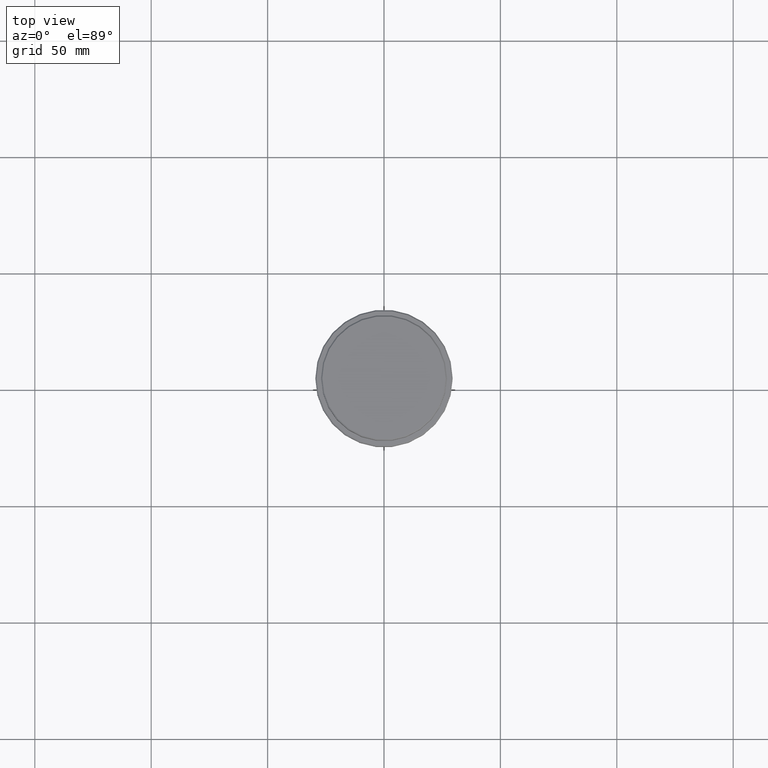
[diagram: clean part render]
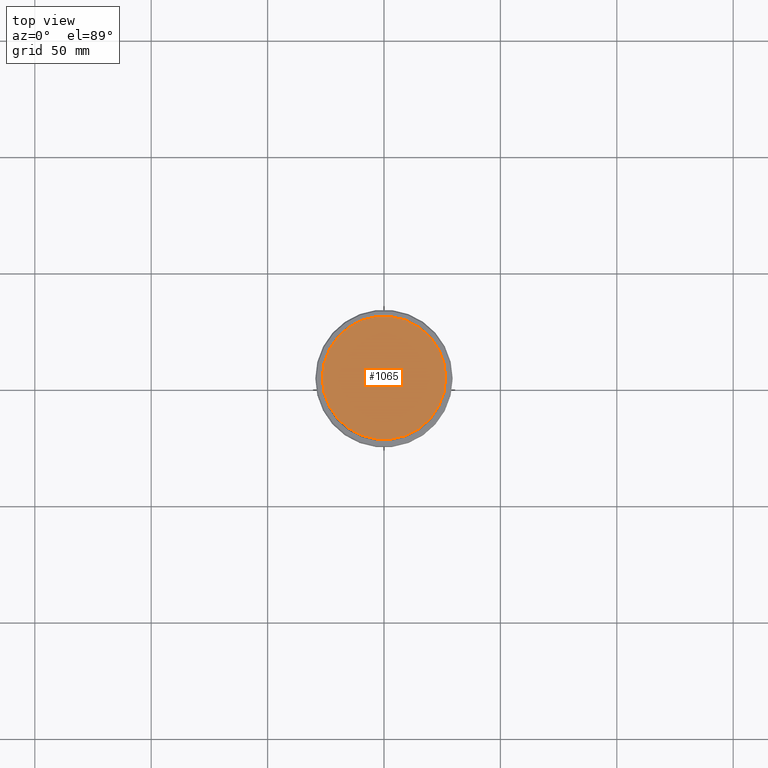
[diagram: same view with one face highlighted and labeled with its STEP entity id]
A machine part, top view. The second image highlights one B-rep face of the part: STEP entity #1065.
In plain terms, the highlighted planar face has unit normal (0, -0, 1).
Its self-contained STEP definition (entity closure, byte-faithful):
#87 = DIRECTION ( 'NONE',  ( -0.000000000000000000, -0.000000000000000000, 1.000000000000000000 ) ) ;
#111 = FACE_OUTER_BOUND ( 'NONE', #1018, .T. ) ;
#158 = VERTEX_POINT ( 'NONE', #516 ) ;
#222 = CARTESIAN_POINT ( 'NONE',  ( 0.000000000000000000, 0.000000000000000000, 0.000000000000000000 ) ) ;
#285 = AXIS2_PLACEMENT_3D ( 'NONE', #699, #1348, #369 ) ;
#369 = DIRECTION ( 'NONE',  ( 1.000000000000000000, 0.000000000000000000, 0.000000000000000000 ) ) ;
#456 = CIRCLE ( 'NONE', #645, 26.49999999999999645 ) ;
#516 = CARTESIAN_POINT ( 'NONE',  ( 26.49999999999999645, 3.275930187719169552E-15, 0.000000000000000000 ) ) ;
#543 = CARTESIAN_POINT ( 'NONE',  ( 0.000000000000000000, 0.000000000000000000, 0.000000000000000000 ) ) ;
#601 = ORIENTED_EDGE ( 'NONE', *, *, #1304, .T. ) ;
#645 = AXIS2_PLACEMENT_3D ( 'NONE', #222, #787, #1004 ) ;
#699 = CARTESIAN_POINT ( 'NONE',  ( 0.000000000000000000, 0.000000000000000000, 0.000000000000000000 ) ) ;
#787 = DIRECTION ( 'NONE',  ( -0.000000000000000000, -0.000000000000000000, 1.000000000000000000 ) ) ;
#789 = ORIENTED_EDGE ( 'NONE', *, *, #1087, .T. ) ;
#927 = PLANE ( 'NONE',  #285 ) ;
#1004 = DIRECTION ( 'NONE',  ( 1.000000000000000000, 0.000000000000000000, 0.000000000000000000 ) ) ;
#1018 = EDGE_LOOP ( 'NONE', ( #601, #789 ) ) ;
#1065 = ADVANCED_FACE ( 'NONE', ( #111 ), #927, .T. ) ;
#1066 = DIRECTION ( 'NONE',  ( 1.000000000000000000, 0.000000000000000000, 0.000000000000000000 ) ) ;
#1087 = EDGE_CURVE ( 'NONE', #158, #1232, #456, .T. ) ;
#1094 = AXIS2_PLACEMENT_3D ( 'NONE', #543, #87, #1066 ) ;
#1177 = CIRCLE ( 'NONE', #1094, 26.49999999999999645 ) ;
#1232 = VERTEX_POINT ( 'NONE', #1375 ) ;
#1304 = EDGE_CURVE ( 'NONE', #1232, #158, #1177, .T. ) ;
#1348 = DIRECTION ( 'NONE',  ( 0.000000000000000000, -0.000000000000000000, 1.000000000000000000 ) ) ;
#1375 = CARTESIAN_POINT ( 'NONE',  ( -26.49999999999999645, 0.000000000000000000, 0.000000000000000000 ) ) ;